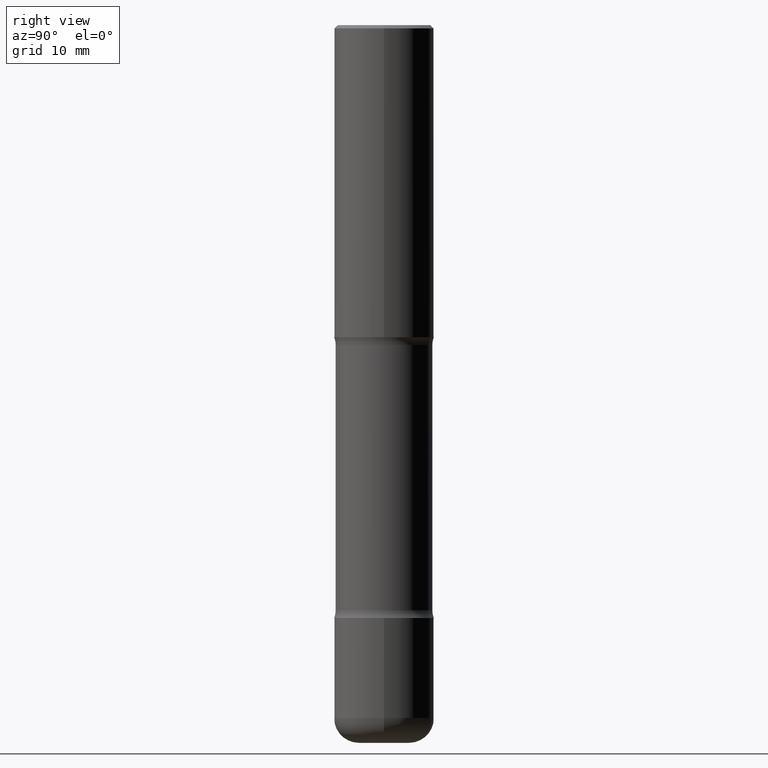
[diagram: clean part render]
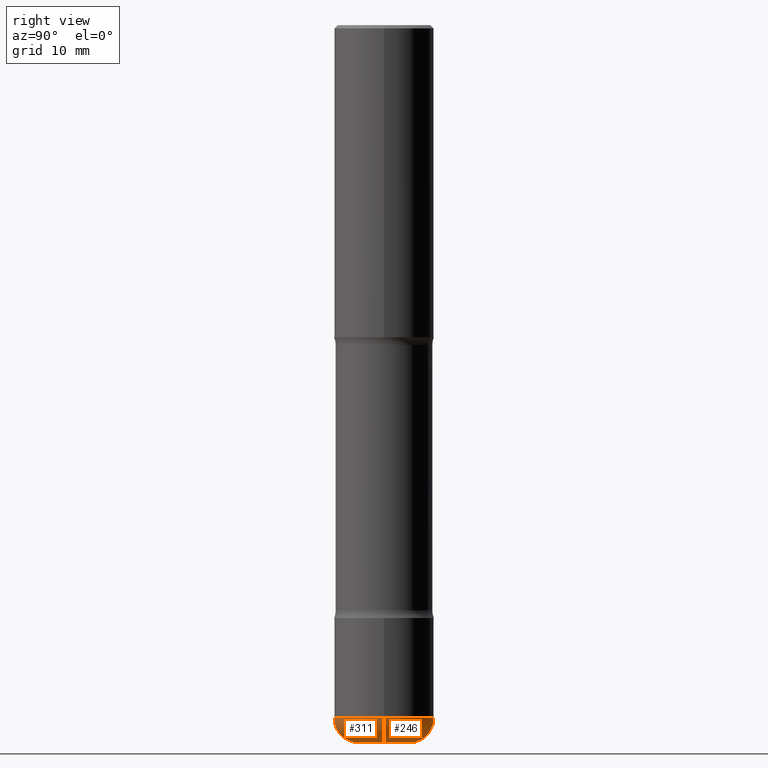
[diagram: same view with one multi-face feature highlighted, each face labeled with its STEP entity id]
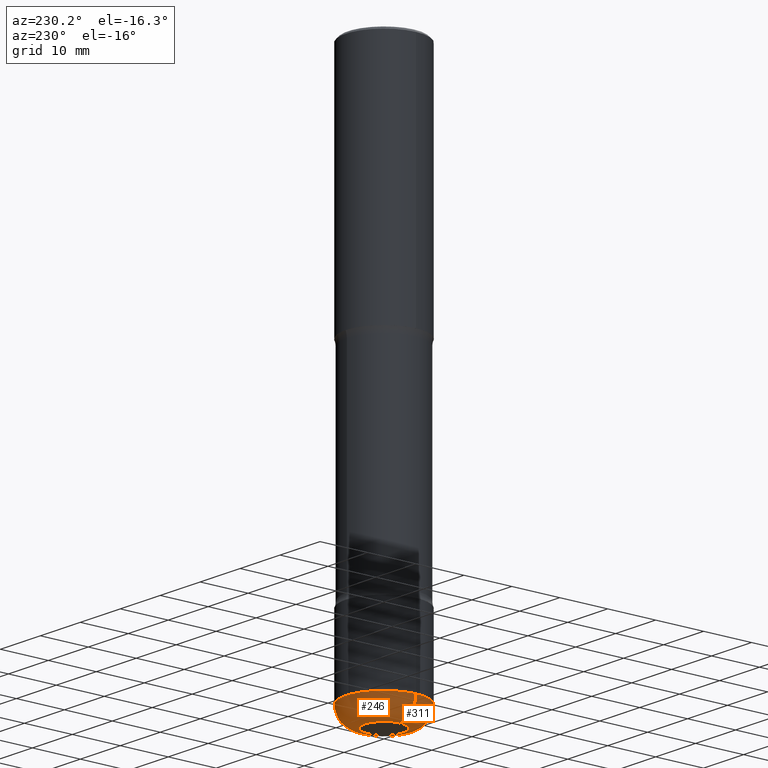
[diagram: same view with one multi-face feature highlighted, each face labeled with its STEP entity id]
A machine part, right view. The highlighted faces form ONE feature: a constant-radius fillet chain: 2 tangent blend faces with common blend radius 4.0005 mm. The faces share edges in the B-rep.
A second angle (auxiliary view) of the same feature is appended — it is thin or edge-on in the first view.
Their STEP definitions:
[1] entity #246 (Torus):
#2 = EDGE_CURVE ( 'NONE', #549, #256, #137, .T. ) ;
#12 = FACE_OUTER_BOUND ( 'NONE', #220, .T. ) ;
#50 = CIRCLE ( 'NONE', #117, 0.1574999999999998346 ) ;
#74 = VERTEX_POINT ( 'NONE', #357 ) ;
#83 = DIRECTION ( 'NONE',  ( -2.445468806185136597E-29, 3.491481338843145583E-15, 1.000000000000000000 ) ) ;
#104 = ORIENTED_EDGE ( 'NONE', *, *, #532, .F. ) ;
#117 = AXIS2_PLACEMENT_3D ( 'NONE', #430, #344, #551 ) ;
#127 = AXIS2_PLACEMENT_3D ( 'NONE', #147, #559, #362 ) ;
#129 = AXIS2_PLACEMENT_3D ( 'NONE', #182, #83, #425 ) ;
#137 = CIRCLE ( 'NONE', #468, 0.3149500000000002853 ) ;
#146 = CARTESIAN_POINT ( 'NONE',  ( -0.1574500000000002564, -1.413937306142415374E-14, -4.370100000000000762 ) ) ;
#147 = CARTESIAN_POINT ( 'NONE',  ( 1.068694322990966674E-28, -1.525812259887843213E-14, -4.370100000000000762 ) ) ;
#152 = DIRECTION ( 'NONE',  ( -1.000000000000000000, 7.105427357601005014E-15, 0.000000000000000000 ) ) ;
#182 = CARTESIAN_POINT ( 'NONE',  ( 1.107210456688382522E-28, -1.580803090974622705E-14, -4.527600000000000513 ) ) ;
#220 = EDGE_LOOP ( 'NONE', ( #334, #548, #264, #104 ) ) ;
#221 = AXIS2_PLACEMENT_3D ( 'NONE', #146, #403, #152 ) ;
#246 = ADVANCED_FACE ( 'NONE', ( #12 ), #368, .T. ) ;
#256 = VERTEX_POINT ( 'NONE', #443 ) ;
#264 = ORIENTED_EDGE ( 'NONE', *, *, #2, .F. ) ;
#267 = EDGE_CURVE ( 'NONE', #74, #256, #512, .T. ) ;
#276 = CIRCLE ( 'NONE', #129, 0.1574500000000002842 ) ;
#302 = CARTESIAN_POINT ( 'NONE',  ( 0.3149500000000001743, -1.745740669421572357E-14, -4.370100000000000762 ) ) ;
#334 = ORIENTED_EDGE ( 'NONE', *, *, #487, .T. ) ;
#344 = DIRECTION ( 'NONE',  ( -6.982962677686266711E-15, -1.000000000000000000, 3.491481338843145583E-15 ) ) ;
#357 = CARTESIAN_POINT ( 'NONE',  ( -0.1574500000000002842, -1.385477481244697319E-14, -4.527600000000000513 ) ) ;
#362 = DIRECTION ( 'NONE',  ( 1.000000000000000000, -6.982962677686268288E-15, 4.883557194083114022E-29 ) ) ;
#368 = TOROIDAL_SURFACE ( 'NONE', #127, 0.1574500000000002564, 0.1574999999999998346 ) ;
#372 = DIRECTION ( 'NONE',  ( 1.000000000000000000, -6.982962677686263555E-15, 0.000000000000000000 ) ) ;
#403 = DIRECTION ( 'NONE',  ( 7.105427357601001859E-15, 1.000000000000000000, -3.491481338843145583E-15 ) ) ;
#422 = VERTEX_POINT ( 'NONE', #455 ) ;
#425 = DIRECTION ( 'NONE',  ( 1.000000000000000000, -6.982962677686265922E-15, 0.000000000000000000 ) ) ;
#430 = CARTESIAN_POINT ( 'NONE',  ( 0.1574500000000002564, -1.635759007248013688E-14, -4.370100000000000762 ) ) ;
#443 = CARTESIAN_POINT ( 'NONE',  ( -0.3149500000000001743, -1.302026825260199614E-14, -4.370100000000000762 ) ) ;
#451 = DIRECTION ( 'NONE',  ( -2.445468806185136597E-29, 3.491481338843145583E-15, 1.000000000000000000 ) ) ;
#455 = CARTESIAN_POINT ( 'NONE',  ( 0.1574500000000002842, -1.690749838334792865E-14, -4.527600000000000513 ) ) ;
#468 = AXIS2_PLACEMENT_3D ( 'NONE', #530, #451, #372 ) ;
#487 = EDGE_CURVE ( 'NONE', #422, #74, #276, .T. ) ;
#512 = CIRCLE ( 'NONE', #221, 0.1574999999999998346 ) ;
#530 = CARTESIAN_POINT ( 'NONE',  ( 1.068694322990966674E-28, -1.525812259887843213E-14, -4.370100000000000762 ) ) ;
#532 = EDGE_CURVE ( 'NONE', #422, #549, #50, .T. ) ;
#548 = ORIENTED_EDGE ( 'NONE', *, *, #267, .T. ) ;
#549 = VERTEX_POINT ( 'NONE', #302 ) ;
#551 = DIRECTION ( 'NONE',  ( 1.000000000000000000, -6.982962677686269866E-15, 0.000000000000000000 ) ) ;
#559 = DIRECTION ( 'NONE',  ( -2.445468806185136597E-29, 3.491481338843145583E-15, 1.000000000000000000 ) ) ;
[2] entity #311 (Torus):
#15 = DIRECTION ( 'NONE',  ( -2.445468806185136597E-29, 3.491481338843145583E-15, 1.000000000000000000 ) ) ;
#50 = CIRCLE ( 'NONE', #117, 0.1574999999999998346 ) ;
#64 = CARTESIAN_POINT ( 'NONE',  ( 1.068694322990966674E-28, -1.525812259887843213E-14, -4.370100000000000762 ) ) ;
#74 = VERTEX_POINT ( 'NONE', #357 ) ;
#117 = AXIS2_PLACEMENT_3D ( 'NONE', #430, #344, #551 ) ;
#122 = EDGE_CURVE ( 'NONE', #74, #422, #519, .T. ) ;
#125 = ORIENTED_EDGE ( 'NONE', *, *, #346, .F. ) ;
#146 = CARTESIAN_POINT ( 'NONE',  ( -0.1574500000000002564, -1.413937306142415374E-14, -4.370100000000000762 ) ) ;
#152 = DIRECTION ( 'NONE',  ( -1.000000000000000000, 7.105427357601005014E-15, 0.000000000000000000 ) ) ;
#159 = DIRECTION ( 'NONE',  ( 1.000000000000000000, -6.982962677686265922E-15, 0.000000000000000000 ) ) ;
#161 = TOROIDAL_SURFACE ( 'NONE', #306, 0.1574500000000002564, 0.1574999999999998346 ) ;
#179 = AXIS2_PLACEMENT_3D ( 'NONE', #535, #375, #159 ) ;
#181 = ORIENTED_EDGE ( 'NONE', *, *, #267, .F. ) ;
#195 = AXIS2_PLACEMENT_3D ( 'NONE', #64, #500, #290 ) ;
#221 = AXIS2_PLACEMENT_3D ( 'NONE', #146, #403, #152 ) ;
#230 = CIRCLE ( 'NONE', #195, 0.3149500000000002853 ) ;
#245 = ORIENTED_EDGE ( 'NONE', *, *, #122, .T. ) ;
#248 = DIRECTION ( 'NONE',  ( 1.000000000000000000, -6.982962677686268288E-15, 4.883557194083114022E-29 ) ) ;
#256 = VERTEX_POINT ( 'NONE', #443 ) ;
#258 = EDGE_LOOP ( 'NONE', ( #181, #245, #511, #125 ) ) ;
#267 = EDGE_CURVE ( 'NONE', #74, #256, #512, .T. ) ;
#290 = DIRECTION ( 'NONE',  ( 1.000000000000000000, -6.982962677686263555E-15, 0.000000000000000000 ) ) ;
#302 = CARTESIAN_POINT ( 'NONE',  ( 0.3149500000000001743, -1.745740669421572357E-14, -4.370100000000000762 ) ) ;
#306 = AXIS2_PLACEMENT_3D ( 'NONE', #381, #15, #248 ) ;
#311 = ADVANCED_FACE ( 'NONE', ( #413 ), #161, .T. ) ;
#344 = DIRECTION ( 'NONE',  ( -6.982962677686266711E-15, -1.000000000000000000, 3.491481338843145583E-15 ) ) ;
#346 = EDGE_CURVE ( 'NONE', #256, #549, #230, .T. ) ;
#357 = CARTESIAN_POINT ( 'NONE',  ( -0.1574500000000002842, -1.385477481244697319E-14, -4.527600000000000513 ) ) ;
#375 = DIRECTION ( 'NONE',  ( -2.445468806185136597E-29, 3.491481338843145583E-15, 1.000000000000000000 ) ) ;
#381 = CARTESIAN_POINT ( 'NONE',  ( 1.068694322990966674E-28, -1.525812259887843213E-14, -4.370100000000000762 ) ) ;
#403 = DIRECTION ( 'NONE',  ( 7.105427357601001859E-15, 1.000000000000000000, -3.491481338843145583E-15 ) ) ;
#413 = FACE_OUTER_BOUND ( 'NONE', #258, .T. ) ;
#422 = VERTEX_POINT ( 'NONE', #455 ) ;
#430 = CARTESIAN_POINT ( 'NONE',  ( 0.1574500000000002564, -1.635759007248013688E-14, -4.370100000000000762 ) ) ;
#443 = CARTESIAN_POINT ( 'NONE',  ( -0.3149500000000001743, -1.302026825260199614E-14, -4.370100000000000762 ) ) ;
#455 = CARTESIAN_POINT ( 'NONE',  ( 0.1574500000000002842, -1.690749838334792865E-14, -4.527600000000000513 ) ) ;
#500 = DIRECTION ( 'NONE',  ( -2.445468806185136597E-29, 3.491481338843145583E-15, 1.000000000000000000 ) ) ;
#511 = ORIENTED_EDGE ( 'NONE', *, *, #532, .T. ) ;
#512 = CIRCLE ( 'NONE', #221, 0.1574999999999998346 ) ;
#519 = CIRCLE ( 'NONE', #179, 0.1574500000000002842 ) ;
#532 = EDGE_CURVE ( 'NONE', #422, #549, #50, .T. ) ;
#535 = CARTESIAN_POINT ( 'NONE',  ( 1.107210456688382522E-28, -1.580803090974622705E-14, -4.527600000000000513 ) ) ;
#549 = VERTEX_POINT ( 'NONE', #302 ) ;
#551 = DIRECTION ( 'NONE',  ( 1.000000000000000000, -6.982962677686269866E-15, 0.000000000000000000 ) ) ;